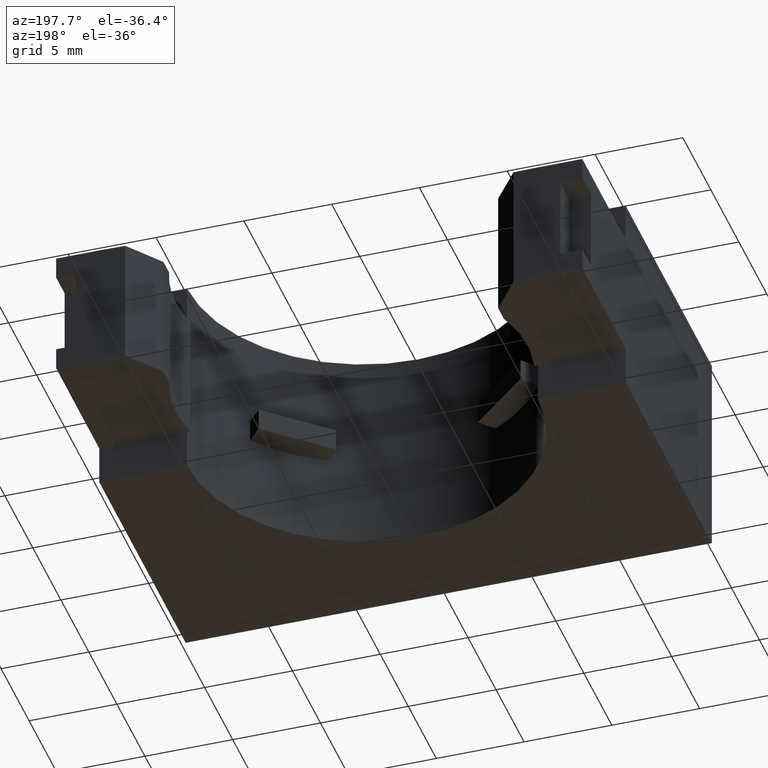
[diagram: clean part render]
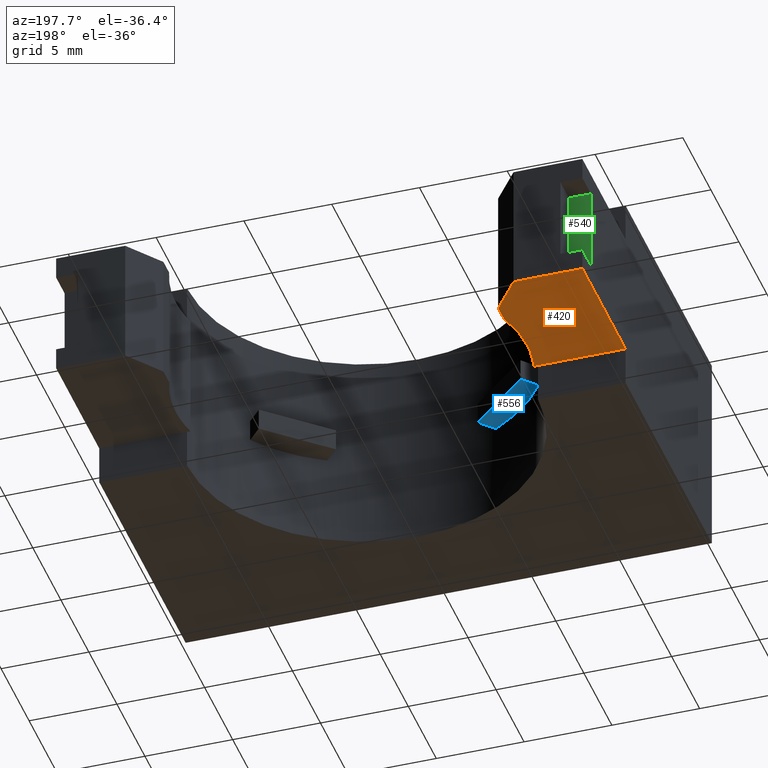
[diagram: same view with three faces highlighted in distinct colors, each labeled with its STEP entity id]
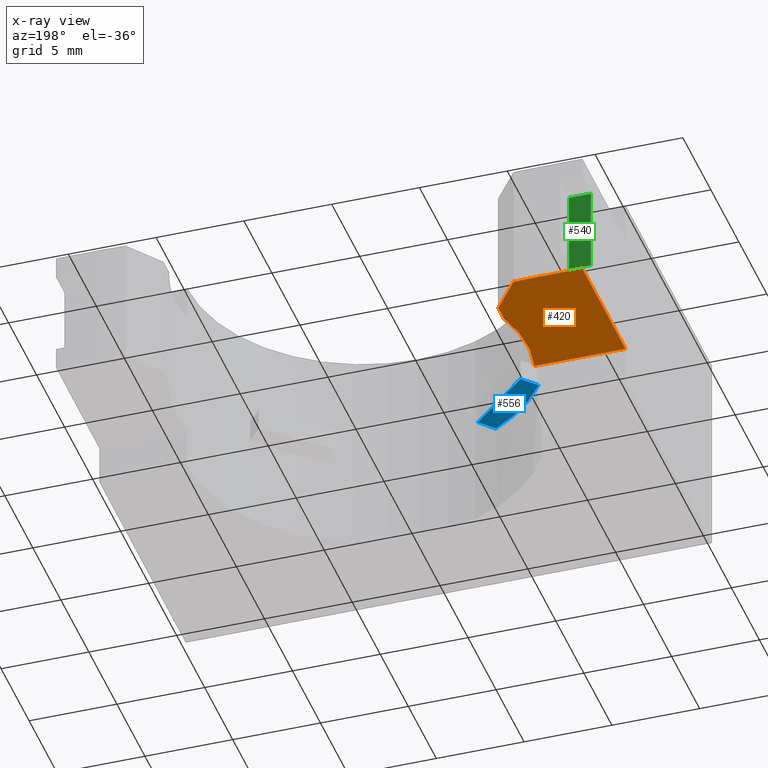
[diagram: x-ray of the same camera — body ghosted, the three highlighted faces saturated]
A machine part, auxiliary view with three faces highlighted in distinct colors.
The next image is the same camera in x-ray (body ghosted, the three faces saturated) — at least one of them is partly hidden behind the body in this view.
Their STEP definitions:

[orange] entity #420 — the highlighted planar face has unit normal (0, -0, 1).
#7 = VERTEX_POINT ( 'NONE', #1667 ) ;
#88 = VERTEX_POINT ( 'NONE', #680 ) ;
#103 = EDGE_CURVE ( 'NONE', #7, #115, #688, .T. ) ;
#113 = VERTEX_POINT ( 'NONE', #727 ) ;
#115 = VERTEX_POINT ( 'NONE', #726 ) ;
#153 = EDGE_CURVE ( 'NONE', #7, #113, #741, .T. ) ;
#270 = EDGE_CURVE ( 'NONE', #88, #271, #1052, .T. ) ;
#271 = VERTEX_POINT ( 'NONE', #967 ) ;
#280 = EDGE_CURVE ( 'NONE', #271, #331, #1043, .T. ) ;
#292 = EDGE_CURVE ( 'NONE', #307, #113, #1003, .T. ) ;
#307 = VERTEX_POINT ( 'NONE', #983 ) ;
#331 = VERTEX_POINT ( 'NONE', #1081 ) ;
#333 = EDGE_CURVE ( 'NONE', #331, #334, #1095, .T. ) ;
#334 = VERTEX_POINT ( 'NONE', #1127 ) ;
#414 = ORIENTED_EDGE ( 'NONE', *, *, #292, .F. ) ;
#415 = ORIENTED_EDGE ( 'NONE', *, *, #442, .F. ) ;
#416 = ORIENTED_EDGE ( 'NONE', *, *, #103, .F. ) ;
#420 = ADVANCED_FACE ( 'NONE', ( #1185 ), #1189, .F. ) ;
#421 = ORIENTED_EDGE ( 'NONE', *, *, #333, .F. ) ;
#422 = EDGE_LOOP ( 'NONE', ( #414, #447, #421, #462, #443, #415, #416, #428 ) ) ;
#423 = EDGE_CURVE ( 'NONE', #307, #334, #1183, .T. ) ;
#428 = ORIENTED_EDGE ( 'NONE', *, *, #153, .T. ) ;
#442 = EDGE_CURVE ( 'NONE', #115, #88, #1215, .T. ) ;
#443 = ORIENTED_EDGE ( 'NONE', *, *, #270, .F. ) ;
#447 = ORIENTED_EDGE ( 'NONE', *, *, #423, .T. ) ;
#462 = ORIENTED_EDGE ( 'NONE', *, *, #280, .F. ) ;
#680 = CARTESIAN_POINT ( 'NONE',  ( -0.3933333333333332600, 0.1516666666666670600, 0.08954999999999972700 ) ) ;
#687 = VECTOR ( 'NONE', #691, 39.37007874015748100 ) ;
#688 = LINE ( 'NONE', #689, #687 ) ;
#689 = CARTESIAN_POINT ( 'NONE',  ( -0.5899999999999997500, 0.4550000000000001800, 0.08954999999999976900 ) ) ;
#691 = DIRECTION ( 'NONE',  ( 0.0000000000000000000, -1.000000000000000000, -1.125761535850658700E-016 ) ) ;
#726 = CARTESIAN_POINT ( 'NONE',  ( -0.5899999999999997500, 0.1516666666666670600, 0.08954999999999972700 ) ) ;
#727 = CARTESIAN_POINT ( 'NONE',  ( -0.4943750000000004000, 0.4550000000000001800, 0.08954999999999976900 ) ) ;
#738 = DIRECTION ( 'NONE',  ( 1.000000000000000000, -0.0000000000000000000, -0.0000000000000000000 ) ) ;
#739 = VECTOR ( 'NONE', #738, 39.37007874015748100 ) ;
#740 = CARTESIAN_POINT ( 'NONE',  ( -0.5899999999999997500, 0.4550000000000001800, 0.08954999999999976900 ) ) ;
#741 = LINE ( 'NONE', #740, #739 ) ;
#967 = CARTESIAN_POINT ( 'NONE',  ( -0.3854666666666664000, 0.1516666666666670600, 0.08954999999999972700 ) ) ;
#971 = DIRECTION ( 'NONE',  ( 0.0000000000000000000, -1.000000000000000000, -1.102663165959340000E-016 ) ) ;
#972 = DIRECTION ( 'NONE',  ( -0.0000000000000000000, 1.125761535850658700E-016, -1.000000000000000000 ) ) ;
#983 = CARTESIAN_POINT ( 'NONE',  ( -0.4353125000000004400, 0.4539665354330713100, 0.08954999999999972700 ) ) ;
#1002 = CARTESIAN_POINT ( 'NONE',  ( -0.3753125000000004900, 0.4529166666666669700, 0.08954999999999976900 ) ) ;
#1003 = LINE ( 'NONE', #1002, #1055 ) ;
#1041 = CARTESIAN_POINT ( 'NONE',  ( -0.08490476214538889000, 0.2262916571644378000, 0.08954999999999972700 ) ) ;
#1042 = AXIS2_PLACEMENT_3D ( 'NONE', #1041, #972, #971 ) ;
#1043 = CIRCLE ( 'NONE', #1042, 0.3096874999999998400 ) ;
#1045 = DIRECTION ( 'NONE',  ( 1.000000000000000000, -0.0000000000000000000, -0.0000000000000000000 ) ) ;
#1046 = VECTOR ( 'NONE', #1045, 39.37007874015748100 ) ;
#1051 = CARTESIAN_POINT ( 'NONE',  ( -0.5899999999999997500, 0.1516666666666670600, 0.08954999999999972700 ) ) ;
#1052 = LINE ( 'NONE', #1051, #1046 ) ;
#1054 = DIRECTION ( 'NONE',  ( -0.9998469484184252500, 0.01749513470548360800, 1.969534971595938800E-018 ) ) ;
#1055 = VECTOR ( 'NONE', #1054, 39.37007874015747400 ) ;
#1081 = CARTESIAN_POINT ( 'NONE',  ( -0.3753125000000004900, 0.3338541666666669500, 0.08954999999999975500 ) ) ;
#1092 = DIRECTION ( 'NONE',  ( 0.0000000000000000000, 1.000000000000000000, 1.125761535850658700E-016 ) ) ;
#1093 = VECTOR ( 'NONE', #1092, 39.37007874015748100 ) ;
#1094 = CARTESIAN_POINT ( 'NONE',  ( -0.3753125000000004900, 0.3338541666666669500, 0.08954999999999975500 ) ) ;
#1095 = LINE ( 'NONE', #1094, #1093 ) ;
#1127 = CARTESIAN_POINT ( 'NONE',  ( -0.3753125000000004900, 0.3739665354330711800, 0.08954999999999975500 ) ) ;
#1177 = DIRECTION ( 'NONE',  ( 0.5999999999999993100, -0.8000000000000004900, -9.006092286805275300E-017 ) ) ;
#1178 = VECTOR ( 'NONE', #1177, 39.37007874015748100 ) ;
#1179 = CARTESIAN_POINT ( 'NONE',  ( -0.4914960629921259500, 0.5288779527559054300, 0.08954999999999976900 ) ) ;
#1180 = DIRECTION ( 'NONE',  ( 0.0000000000000000000, -1.000000000000000000, -1.125761535850658700E-016 ) ) ;
#1181 = DIRECTION ( 'NONE',  ( 0.0000000000000000000, -1.125761535850658700E-016, 1.000000000000000000 ) ) ;
#1182 = CARTESIAN_POINT ( 'NONE',  ( -0.5899999999999997500, 0.4550000000000001800, 0.08954999999999976900 ) ) ;
#1183 = LINE ( 'NONE', #1179, #1178 ) ;
#1184 = AXIS2_PLACEMENT_3D ( 'NONE', #1182, #1181, #1180 ) ;
#1185 = FACE_OUTER_BOUND ( 'NONE', #422, .T. ) ;
#1189 = PLANE ( 'NONE',  #1184 ) ;
#1209 = DIRECTION ( 'NONE',  ( 1.000000000000000000, -0.0000000000000000000, -0.0000000000000000000 ) ) ;
#1210 = VECTOR ( 'NONE', #1209, 39.37007874015748100 ) ;
#1211 = CARTESIAN_POINT ( 'NONE',  ( -0.5899999999999997500, 0.1516666666666670600, 0.08954999999999972700 ) ) ;
#1215 = LINE ( 'NONE', #1211, #1210 ) ;
#1667 = CARTESIAN_POINT ( 'NONE',  ( -0.5899999999999997500, 0.4550000000000001800, 0.08954999999999976900 ) ) ;

[blue] entity #556 — the highlighted planar face has unit normal (0, 0, -1).
#5 = EDGE_CURVE ( 'NONE', #6, #84, #1673, .T. ) ;
#6 = VERTEX_POINT ( 'NONE', #1668 ) ;
#84 = VERTEX_POINT ( 'NONE', #684 ) ;
#549 = VERTEX_POINT ( 'NONE', #1286 ) ;
#552 = EDGE_CURVE ( 'NONE', #84, #568, #1279, .T. ) ;
#553 = EDGE_CURVE ( 'NONE', #568, #549, #1275, .T. ) ;
#555 = EDGE_LOOP ( 'NONE', ( #557, #580, #581, #569 ) ) ;
#556 = ADVANCED_FACE ( 'NONE', ( #1433 ), #1431, .T. ) ;
#557 = ORIENTED_EDGE ( 'NONE', *, *, #578, .T. ) ;
#568 = VERTEX_POINT ( 'NONE', #1407 ) ;
#569 = ORIENTED_EDGE ( 'NONE', *, *, #553, .T. ) ;
#578 = EDGE_CURVE ( 'NONE', #549, #6, #1373, .T. ) ;
#580 = ORIENTED_EDGE ( 'NONE', *, *, #5, .T. ) ;
#581 = ORIENTED_EDGE ( 'NONE', *, *, #552, .T. ) ;
#684 = CARTESIAN_POINT ( 'NONE',  ( -0.3232140239537952800, -0.07248463453568267100, 0.2099999999999999900 ) ) ;
#1275 = LINE ( 'NONE', #1436, #1435 ) ;
#1276 = DIRECTION ( 'NONE',  ( 0.6691306063588600100, 0.7431448254773925800, -0.0000000000000000000 ) ) ;
#1277 = VECTOR ( 'NONE', #1276, 39.37007874015748900 ) ;
#1278 = CARTESIAN_POINT ( 'NONE',  ( -0.2934284184901821400, -0.03940436834602936000, 0.2099999999999999900 ) ) ;
#1279 = LINE ( 'NONE', #1278, #1277 ) ;
#1286 = CARTESIAN_POINT ( 'NONE',  ( -0.1593527062269803600, -0.1601266819099529400, 0.2099999999999999900 ) ) ;
#1370 = DIRECTION ( 'NONE',  ( -0.6691306063588558000, -0.7431448254773963500, 0.0000000000000000000 ) ) ;
#1371 = VECTOR ( 'NONE', #1370, 39.37007874015748900 ) ;
#1372 = CARTESIAN_POINT ( 'NONE',  ( -0.1593527062269803600, -0.1601266819099529400, 0.2099999999999999900 ) ) ;
#1373 = LINE ( 'NONE', #1372, #1371 ) ;
#1407 = CARTESIAN_POINT ( 'NONE',  ( -0.2934284184901821400, -0.03940436834602936000, 0.2099999999999999900 ) ) ;
#1427 = DIRECTION ( 'NONE',  ( 0.0000000000000000000, 1.000000000000000000, 8.326672684688674100E-017 ) ) ;
#1428 = DIRECTION ( 'NONE',  ( 0.0000000000000000000, 8.326672684688674100E-017, -1.000000000000000000 ) ) ;
#1429 = CARTESIAN_POINT ( 'NONE',  ( 0.0000000000000000000, 0.1516666666666670600, 0.2099999999999999900 ) ) ;
#1430 = AXIS2_PLACEMENT_3D ( 'NONE', #1429, #1428, #1427 ) ;
#1431 = PLANE ( 'NONE',  #1430 ) ;
#1433 = FACE_OUTER_BOUND ( 'NONE', #555, .T. ) ;
#1434 = DIRECTION ( 'NONE',  ( 0.7431448254773303000, -0.6691306063589292900, -0.0000000000000000000 ) ) ;
#1435 = VECTOR ( 'NONE', #1434, 39.37007874015748100 ) ;
#1436 = CARTESIAN_POINT ( 'NONE',  ( -0.1593527062269803600, -0.1601266819099529400, 0.2099999999999999900 ) ) ;
#1668 = CARTESIAN_POINT ( 'NONE',  ( -0.1891383116905819800, -0.1932069480995939100, 0.2099999999999999400 ) ) ;
#1669 = DIRECTION ( 'NONE',  ( 0.0000000000000000000, 1.000000000000000000, 8.681720318848292500E-017 ) ) ;
#1670 = DIRECTION ( 'NONE',  ( 0.0000000000000000000, 8.326672684688674100E-017, -1.000000000000000000 ) ) ;
#1671 = CARTESIAN_POINT ( 'NONE',  ( 0.0000000000000000000, 0.1516666666666670600, 0.2099999999999999900 ) ) ;
#1672 = AXIS2_PLACEMENT_3D ( 'NONE', #1671, #1670, #1669 ) ;
#1673 = CIRCLE ( 'NONE', #1672, 0.3933333333333334200 ) ;

[green] entity #540 — the highlighted planar face has unit normal (0, 1, -0).
#164 = VERTEX_POINT ( 'NONE', #789 ) ;
#182 = VERTEX_POINT ( 'NONE', #873 ) ;
#197 = EDGE_CURVE ( 'NONE', #164, #182, #904, .T. ) ;
#454 = EDGE_LOOP ( 'NONE', ( #472, #523, #524, #525 ) ) ;
#472 = ORIENTED_EDGE ( 'NONE', *, *, #197, .T. ) ;
#492 = EDGE_CURVE ( 'NONE', #493, #164, #1333, .T. ) ;
#493 = VERTEX_POINT ( 'NONE', #1329 ) ;
#521 = EDGE_CURVE ( 'NONE', #182, #533, #1482, .T. ) ;
#522 = EDGE_CURVE ( 'NONE', #533, #493, #1473, .T. ) ;
#523 = ORIENTED_EDGE ( 'NONE', *, *, #521, .T. ) ;
#524 = ORIENTED_EDGE ( 'NONE', *, *, #522, .T. ) ;
#525 = ORIENTED_EDGE ( 'NONE', *, *, #492, .T. ) ;
#533 = VERTEX_POINT ( 'NONE', #1441 ) ;
#540 = ADVANCED_FACE ( 'NONE', ( #1364 ), #1363, .T. ) ;
#789 = CARTESIAN_POINT ( 'NONE',  ( -0.5899999999999997500, 0.3950000000000003000, 0.1397750000000000100 ) ) ;
#873 = CARTESIAN_POINT ( 'NONE',  ( -0.5899999999999997500, 0.3950000000000003000, 0.3302250000000000500 ) ) ;
#901 = DIRECTION ( 'NONE',  ( -3.586043572675588800E-016, 0.0000000000000000000, 1.000000000000000000 ) ) ;
#902 = VECTOR ( 'NONE', #901, 39.37007874015748100 ) ;
#903 = CARTESIAN_POINT ( 'NONE',  ( -0.5899999999999996400, 0.3950000000000003000, 0.1397750000000000400 ) ) ;
#904 = LINE ( 'NONE', #903, #902 ) ;
#1329 = CARTESIAN_POINT ( 'NONE',  ( -0.5405853200005882300, 0.3950000000000003000, 0.1397750000000000400 ) ) ;
#1330 = DIRECTION ( 'NONE',  ( -1.000000000000000000, -0.0000000000000000000, -0.0000000000000000000 ) ) ;
#1331 = VECTOR ( 'NONE', #1330, 39.37007874015748100 ) ;
#1332 = CARTESIAN_POINT ( 'NONE',  ( -0.5899999999999996400, 0.3950000000000003000, 0.1397750000000000400 ) ) ;
#1333 = LINE ( 'NONE', #1332, #1331 ) ;
#1359 = DIRECTION ( 'NONE',  ( 0.0000000000000000000, 0.0000000000000000000, 1.000000000000000000 ) ) ;
#1360 = DIRECTION ( 'NONE',  ( 0.0000000000000000000, 1.000000000000000000, -0.0000000000000000000 ) ) ;
#1361 = AXIS2_PLACEMENT_3D ( 'NONE', #1362, #1360, #1359 ) ;
#1362 = CARTESIAN_POINT ( 'NONE',  ( -0.5899999999999996400, 0.3950000000000003000, 0.1397750000000000400 ) ) ;
#1363 = PLANE ( 'NONE',  #1361 ) ;
#1364 = FACE_OUTER_BOUND ( 'NONE', #454, .T. ) ;
#1441 = CARTESIAN_POINT ( 'NONE',  ( -0.5405853200005882300, 0.3950000000000003000, 0.3302249999999999400 ) ) ;
#1470 = DIRECTION ( 'NONE',  ( -0.0000000000000000000, -0.0000000000000000000, -1.000000000000000000 ) ) ;
#1471 = VECTOR ( 'NONE', #1470, 39.37007874015748100 ) ;
#1472 = CARTESIAN_POINT ( 'NONE',  ( -0.5405853200005882300, 0.3950000000000003000, 0.1397750000000000400 ) ) ;
#1473 = LINE ( 'NONE', #1472, #1471 ) ;
#1474 = DIRECTION ( 'NONE',  ( 1.000000000000000000, 0.0000000000000000000, -1.382103452707169600E-015 ) ) ;
#1475 = VECTOR ( 'NONE', #1474, 39.37007874015748100 ) ;
#1476 = CARTESIAN_POINT ( 'NONE',  ( -0.5899999999999997500, 0.3950000000000003000, 0.3302250000000000500 ) ) ;
#1482 = LINE ( 'NONE', #1476, #1475 ) ;